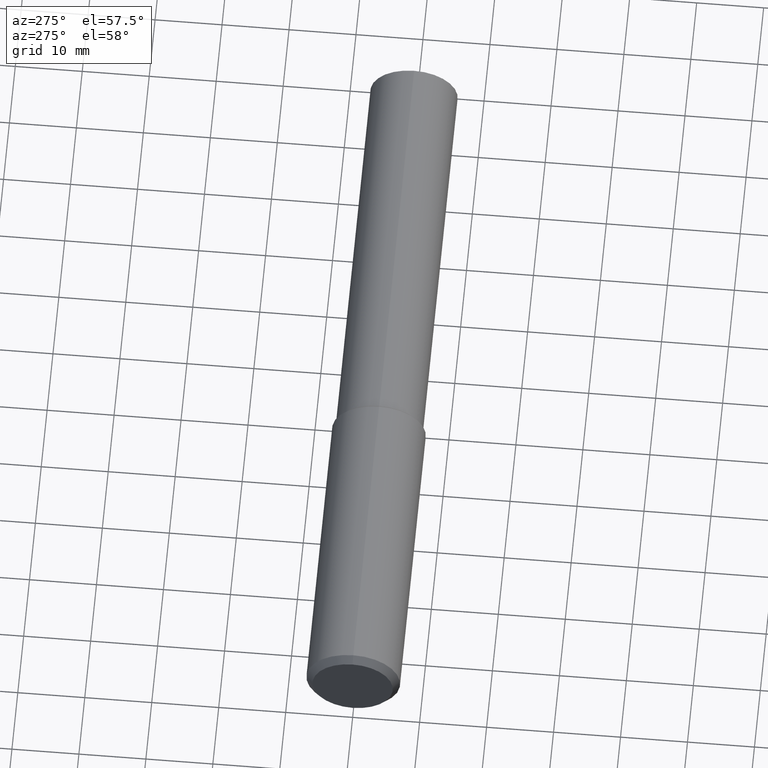
[diagram: clean part render]
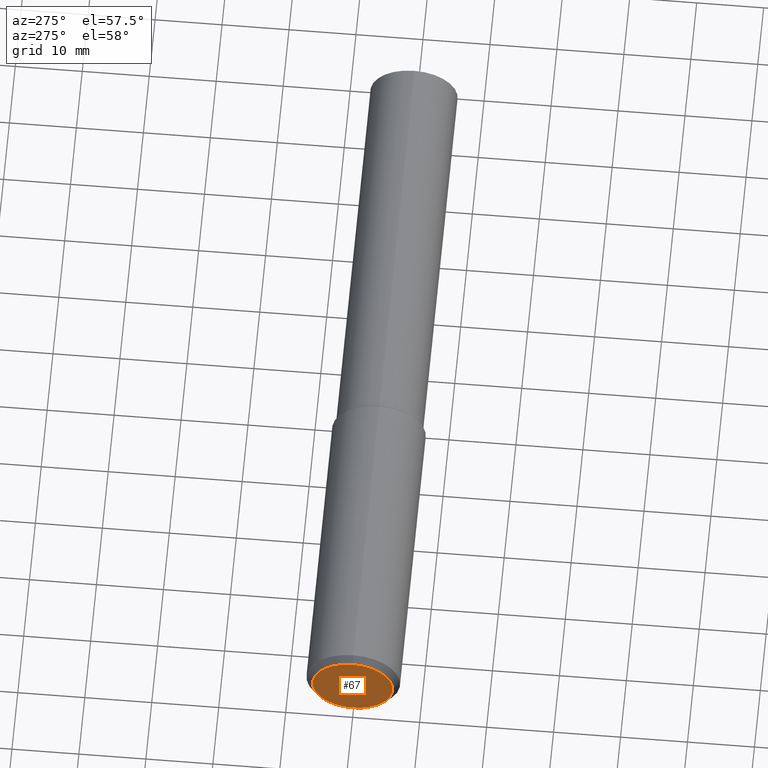
[diagram: same view with one face highlighted and labeled with its STEP entity id]
A machine part, auxiliary view. The second image highlights one B-rep face of the part: STEP entity #67.
In plain terms, the highlighted planar face has unit normal (-1, 0, 0).
Its self-contained STEP definition (entity closure, byte-faithful):
#3 = AXIS2_PLACEMENT_3D ( 'NONE', #208, #8, #236 ) ;
#7 = CIRCLE ( 'NONE', #61, 0.2362204724409449341 ) ;
#8 = DIRECTION ( 'NONE',  ( -1.000000000000000000, 0.000000000000000000, 0.000000000000000000 ) ) ;
#61 = AXIS2_PLACEMENT_3D ( 'NONE', #189, #306, #268 ) ;
#67 = ADVANCED_FACE ( 'NONE', ( #360 ), #297, .T. ) ;
#70 = CARTESIAN_POINT ( 'NONE',  ( 4.268512490100411279E-18, 0.000000000000000000, 0.000000000000000000 ) ) ;
#99 = DIRECTION ( 'NONE',  ( 0.000000000000000000, 0.000000000000000000, -1.000000000000000000 ) ) ;
#154 = CARTESIAN_POINT ( 'NONE',  ( 4.268512490100411279E-18, 0.000000000000000000, -0.2362204724409449341 ) ) ;
#189 = CARTESIAN_POINT ( 'NONE',  ( 4.268512490100411279E-18, 0.000000000000000000, 0.000000000000000000 ) ) ;
#195 = VERTEX_POINT ( 'NONE', #219 ) ;
#198 = ORIENTED_EDGE ( 'NONE', *, *, #248, .F. ) ;
#208 = CARTESIAN_POINT ( 'NONE',  ( 1.186075246418301222E-18, 0.2362204724409449341, 0.000000000000000000 ) ) ;
#219 = CARTESIAN_POINT ( 'NONE',  ( 4.268512490100411279E-18, 3.133938659235352953E-17, 0.2362204724409449341 ) ) ;
#236 = DIRECTION ( 'NONE',  ( 0.000000000000000000, 0.000000000000000000, 1.000000000000000000 ) ) ;
#248 = EDGE_CURVE ( 'NONE', #254, #195, #7, .T. ) ;
#250 = ORIENTED_EDGE ( 'NONE', *, *, #344, .F. ) ;
#252 = CIRCLE ( 'NONE', #305, 0.2362204724409449341 ) ;
#254 = VERTEX_POINT ( 'NONE', #154 ) ;
#268 = DIRECTION ( 'NONE',  ( 0.000000000000000000, 0.000000000000000000, -1.000000000000000000 ) ) ;
#297 = PLANE ( 'NONE',  #3 ) ;
#305 = AXIS2_PLACEMENT_3D ( 'NONE', #70, #364, #99 ) ;
#306 = DIRECTION ( 'NONE',  ( 1.000000000000000000, -0.000000000000000000, -0.000000000000000000 ) ) ;
#319 = EDGE_LOOP ( 'NONE', ( #198, #250 ) ) ;
#344 = EDGE_CURVE ( 'NONE', #195, #254, #252, .T. ) ;
#360 = FACE_OUTER_BOUND ( 'NONE', #319, .T. ) ;
#364 = DIRECTION ( 'NONE',  ( 1.000000000000000000, -0.000000000000000000, -0.000000000000000000 ) ) ;